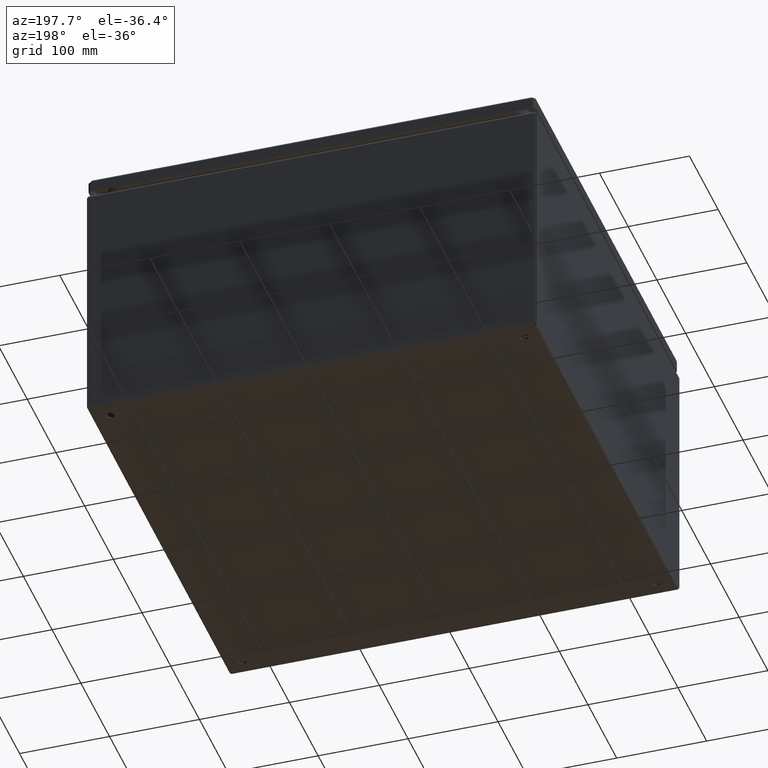
[diagram: clean part render]
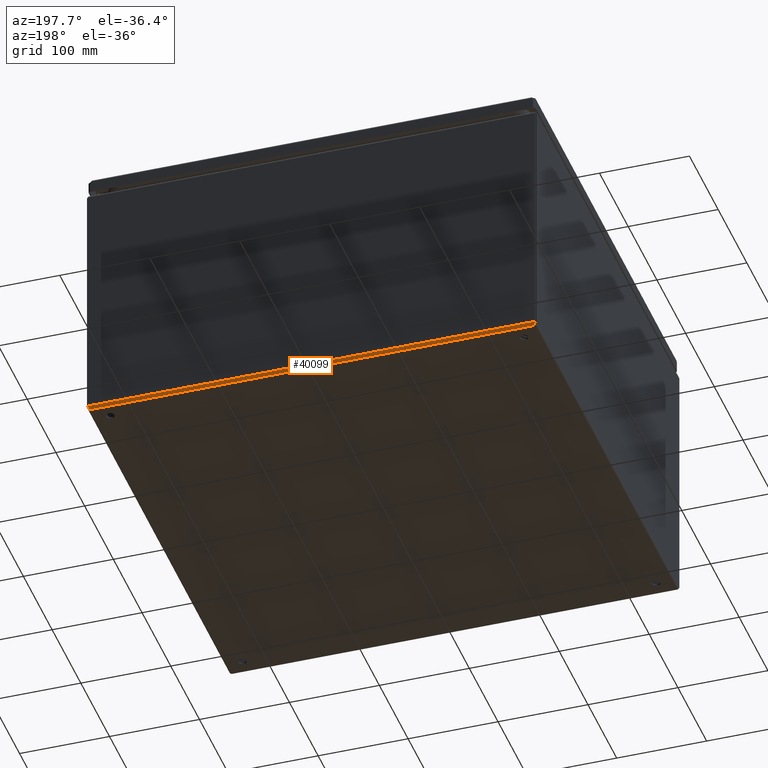
[diagram: same view with one face highlighted and labeled with its STEP entity id]
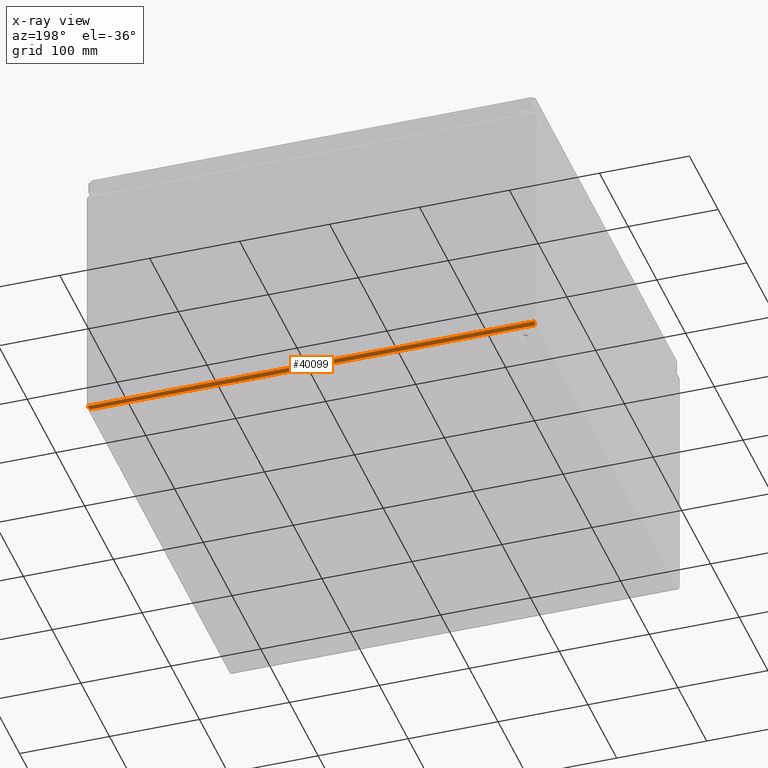
[diagram: x-ray of the same camera — body ghosted, the highlighted face saturated]
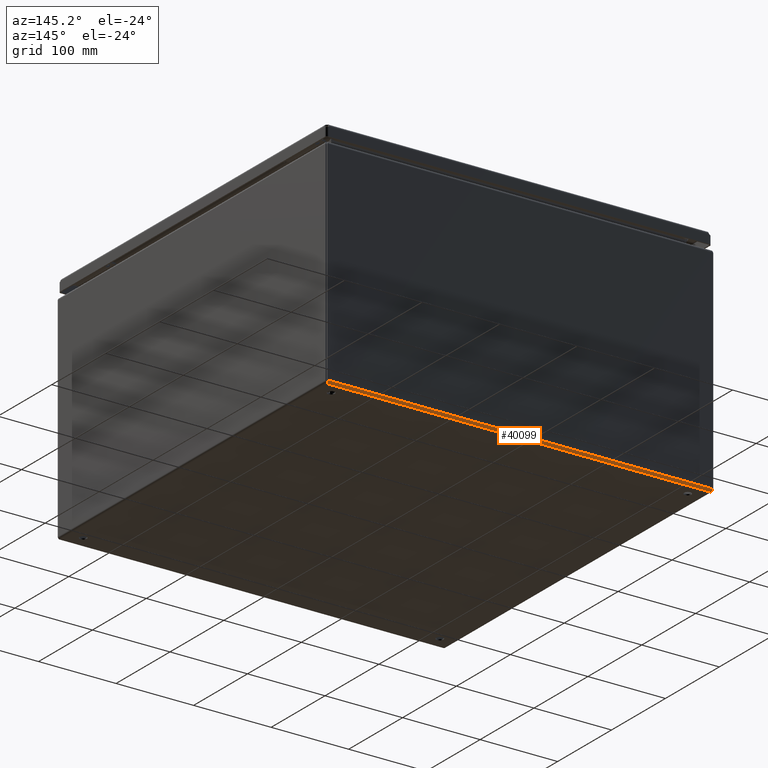
[diagram: same view with one face highlighted and labeled with its STEP entity id]
A machine part, auxiliary view. The second image highlights one B-rep face of the part: STEP entity #40099.
The next image is the same camera in x-ray: the body ghosted, the highlighted face saturated — about 0% of this face is hidden behind the body in this view.
A second angle (auxiliary view) of the same face is appended — the face is thin or edge-on in the first view.
In plain terms, the highlighted cylindrical surface (edge-blend (fillet) strip) has radius 3 mm, axis along (-1, 0, 0).
Its self-contained STEP definition (entity closure, byte-faithful):
#22223 = CARTESIAN_POINT ( 'NONE',  ( -248.4992928931850700, 250.0000000000001700, 3.000000000000002700 ) ) ;
#22250 = CARTESIAN_POINT ( 'NONE',  ( 248.4992928932383600, 250.0000000000001700, 3.000000000000002700 ) ) ;
#22324 = DIRECTION ( 'NONE',  ( -1.000000000000000000, 6.123031769111886300E-017, 0.0000000000000000000 ) ) ;
#22325 = VECTOR ( 'NONE', #22324, 1000.000000000000000 ) ;
#22326 = CARTESIAN_POINT ( 'NONE',  ( 2733.499999999999500, 250.0000000000000000, 3.000000000000002700 ) ) ;
#22327 = LINE ( 'NONE', #22326, #22325 ) ;
#22884 = CARTESIAN_POINT ( 'NONE',  ( -247.0000000000001100, 246.9999999999746500, 1.301042606982605300E-015 ) ) ;
#22894 = CARTESIAN_POINT ( 'NONE',  ( 246.9999999999948600, 247.0000000000000000, 1.301042606982605300E-015 ) ) ;
#22951 = DIRECTION ( 'NONE',  ( -1.000000000000000000, 6.123031769111886300E-017, 0.0000000000000000000 ) ) ;
#22952 = VECTOR ( 'NONE', #22951, 1000.000000000000000 ) ;
#22953 = CARTESIAN_POINT ( 'NONE',  ( 248.4999999999999700, 247.0000000000000300, 1.301042606982605300E-015 ) ) ;
#22954 = LINE ( 'NONE', #22953, #22952 ) ;
#23071 =( BOUNDED_CURVE ( )  B_SPLINE_CURVE ( 3, ( #23114, #23113, #23112, #23111 ),
 .UNSPECIFIED., .F., .F. ) 
 B_SPLINE_CURVE_WITH_KNOTS ( ( 4, 4 ),
 ( 4.712388980375714600, 6.283185307179586200 ),
 .UNSPECIFIED. ) 
 CURVE ( )  GEOMETRIC_REPRESENTATION_ITEM ( )  RATIONAL_B_SPLINE_CURVE ( ( 1.000000000000000000, 0.8047378541222496300, 0.8047378541222496300, 1.000000000000000000 ) ) 
 REPRESENTATION_ITEM ( '' )  );
#23101 = DIRECTION ( 'NONE',  ( 0.0000000000000000000, 0.0000000000000000000, 1.000000000000000000 ) ) ;
#23102 = DIRECTION ( 'NONE',  ( -1.000000000000000000, 6.123031769111886300E-017, 0.0000000000000000000 ) ) ;
#23103 = CARTESIAN_POINT ( 'NONE',  ( 248.4999999999999700, 247.0000000000000000, 3.000000000000001300 ) ) ;
#23104 = AXIS2_PLACEMENT_3D ( 'NONE', #23103, #23102, #23101 ) ;
#23105 = CYLINDRICAL_SURFACE ( 'NONE', #23104, 3.000000000000000400 ) ;
#23106 = FACE_OUTER_BOUND ( 'NONE', #40101, .T. ) ;
#23111 = CARTESIAN_POINT ( 'NONE',  ( -248.4992928931850700, 250.0000000000001700, 3.000000000000002700 ) ) ;
#23112 = CARTESIAN_POINT ( 'NONE',  ( -248.4992928932014700, 250.0000000000000000, 1.242640687106780300 ) ) ;
#23113 = CARTESIAN_POINT ( 'NONE',  ( -247.8782654428675300, 248.7573593128663600, -1.577226440867000900E-011 ) ) ;
#23114 = CARTESIAN_POINT ( 'NONE',  ( -247.0000000000001100, 246.9999999999746500, 1.301042606982605300E-015 ) ) ;
#23138 = CARTESIAN_POINT ( 'NONE',  ( 246.9999999999948600, 247.0000000000000000, 1.301042606982605300E-015 ) ) ;
#23139 = CARTESIAN_POINT ( 'NONE',  ( 247.8782654428841600, 248.7573593128807100, 2.057534483052204300E-015 ) ) ;
#23140 = CARTESIAN_POINT ( 'NONE',  ( 248.4992928932329600, 250.0000000000000000, 1.242640687119287200 ) ) ;
#23141 = CARTESIAN_POINT ( 'NONE',  ( 248.4992928932383600, 250.0000000000001700, 3.000000000000002700 ) ) ;
#23142 =( BOUNDED_CURVE ( )  B_SPLINE_CURVE ( 3, ( #23141, #23140, #23139, #23138 ),
 .UNSPECIFIED., .F., .T. ) 
 B_SPLINE_CURVE_WITH_KNOTS ( ( 4, 4 ),
 ( 3.141592653589793100, 4.712388980384689700 ),
 .UNSPECIFIED. ) 
 CURVE ( )  GEOMETRIC_REPRESENTATION_ITEM ( )  RATIONAL_B_SPLINE_CURVE ( ( 1.000000000000000000, 0.8047378541243649400, 0.8047378541243649400, 1.000000000000000000 ) ) 
 REPRESENTATION_ITEM ( '' )  );
#39139 = VERTEX_POINT ( 'NONE', #22223 ) ;
#39175 = VERTEX_POINT ( 'NONE', #22250 ) ;
#39279 = EDGE_CURVE ( 'NONE', #39175, #39139, #22327, .T. ) ;
#39919 = VERTEX_POINT ( 'NONE', #22894 ) ;
#39931 = VERTEX_POINT ( 'NONE', #22884 ) ;
#39936 = EDGE_CURVE ( 'NONE', #39919, #39931, #22954, .T. ) ;
#40095 = EDGE_CURVE ( 'NONE', #39931, #39139, #23071, .T. ) ;
#40099 = ADVANCED_FACE ( 'NONE', ( #23106 ), #23105, .T. ) ;
#40101 = EDGE_LOOP ( 'NONE', ( #40102, #40104, #40106, #40224 ) ) ;
#40102 = ORIENTED_EDGE ( 'NONE', *, *, #39936, .T. ) ;
#40104 = ORIENTED_EDGE ( 'NONE', *, *, #40095, .T. ) ;
#40106 = ORIENTED_EDGE ( 'NONE', *, *, #39279, .F. ) ;
#40133 = EDGE_CURVE ( 'NONE', #39175, #39919, #23142, .T. ) ;
#40224 = ORIENTED_EDGE ( 'NONE', *, *, #40133, .T. ) ;